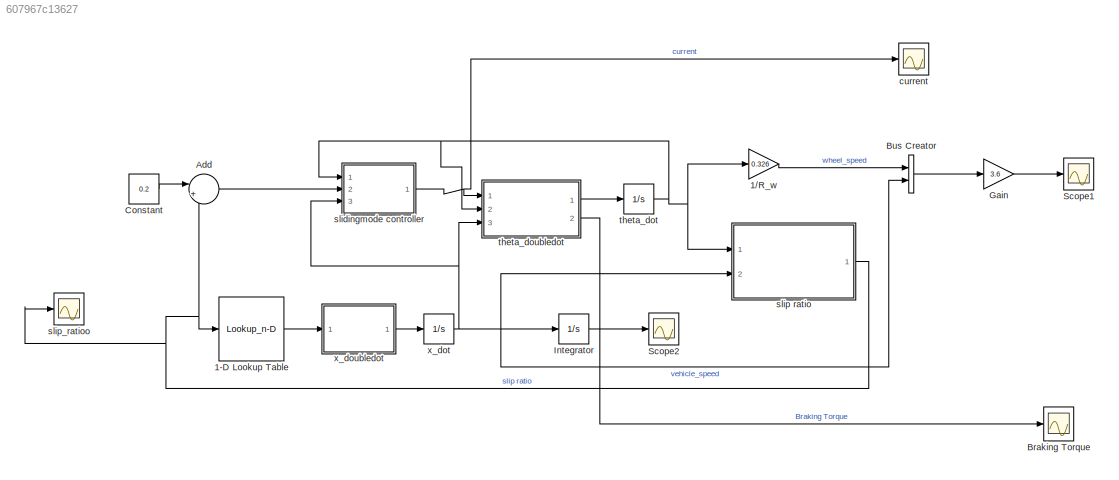
MODEL slx_607967c13627
KIND model
CONFIG AbsTol = auto
CONFIG EnableMultiTasking = off
CONFIG FixedStep = auto
CONFIG MaxStep = auto
CONFIG MinStep = auto
CONFIG RelTol = 1e-3
CONFIG SampleTimeConstraint = Unconstrained
CONFIG SolverName = VariableStepAuto
CONFIG StartTime = 0.0
CONFIG StopTime = 5
BLOCK [Lookup_n-D] 1-D Lookup Table
  BreakpointsForDimension1 = [0\n0.0500000000000000028\n0.100000000000000006\n0.150000000000000022\n0.200000000000000011\n0.25\n0.300000000000000044\n0.350000000000000033\n0.400000000000000022\n0.450000000000000011\n0.5\n0.550000000000000044\n0.599999999999999978\n0.649999999999999911\n0.699999999999999956\n0.75\n0.800000000000000044\n0.849999999999999978\n0.900000000000000022\n0.949999999999999956\n1]
  InputPortMap = u0
  InternalRulePriority = Speed
  InterpMethod = Linear Lagrange
  NumberOfTableDimensions = 1
  Ports = [1, 1]
  RndMeth = Simplest
  Table = [0\n0.400000000000000022\n0.800000000000000044\n0.969999999999999973\n1\n0.979999999999999982\n0.959999999999999964\n0.939999999999999947\n0.92000000000000004\n0.900000000000000022\n0.880000000000000004\n0.854999999999999982\n0.82999999999999996\n0.810000000000000053\n0.790000000000000036\n0.770000000000000018\n0.75\n0.729999999999999982\n0.719999999999999973\n0.709999999999999964\n0.699999999999999956]
BLOCK [Gain] 1//R_w
  Gain = 0.326
BLOCK [Sum] Add
  Inputs = |+-
  Ports = [2, 1]
BLOCK [Scope] Braking Torque
  Floating = off
  NumInputPorts = 1
  Ports = [1]
  ScopeSpecificationString = Simulink.scopes.TimeScopeBlockCfg('CurrentConfiguration', extmgr.ConfigurationSet(extmgr.Configuration('Core','General UI',true),extmgr.Configuration('Core','Source UI',true),extmgr.Configuration('Sources','WiredSimulink',true,'DataLoggingVariableName','ScopeData1'),extmgr.Configuration('Visuals','Time Domain',true,'SerializedDisplays',{struct('MinYLimReal','-48.68262','MaxYLimReal','2651.39001','...<+1501ch>
BLOCK [BusCreator] Bus Creator
  DisplayOption = bar
  InheritFromInputs = on
  Inputs = wheel_speed,vehicle_speed
  Ports = [2, 1]
BLOCK [Constant] Constant
  Value = 0.2
BLOCK [Gain] Gain
  Gain = 3.6
BLOCK [Integrator] Integrator
  Ports = [1, 1]
BLOCK [Scope] Scope1
  Floating = off
  NumInputPorts = 1
  Ports = [1]
  ScopeSpecificationString = Simulink.scopes.TimeScopeBlockCfg('CurrentConfiguration', extmgr.ConfigurationSet(extmgr.Configuration('Core','General UI',true),extmgr.Configuration('Core','Source UI',true),extmgr.Configuration('Sources','WiredSimulink',true,'DataLoggingVariableName','ScopeData1'),extmgr.Configuration('Visuals','Time Domain',true,'SerializedDisplays',{struct('MinYLimReal','31.70089','MaxYLimReal','158.9132','YLa...<+1490ch>
BLOCK [Scope] Scope2
  Floating = off
  NumInputPorts = 1
  Ports = [1]
  ScopeSpecificationString = Simulink.scopes.TimeScopeBlockCfg('CurrentConfiguration', extmgr.ConfigurationSet(extmgr.Configuration('Core','General UI',true),extmgr.Configuration('Core','Source UI',true),extmgr.Configuration('Sources','WiredSimulink',true,'DataLoggingVariableName','ScopeData2'),extmgr.Configuration('Visuals','Time Domain',true,'SerializedDisplays',{struct('MinYLimReal','-3.11688','MaxYLimReal','28.05194','YLa...<+1373ch>
BLOCK [Scope] current
  Floating = off
  NumInputPorts = 1
  Ports = [1]
  ScopeSpecificationString = Simulink.scopes.TimeScopeBlockCfg('CurrentConfiguration', extmgr.ConfigurationSet(extmgr.Configuration('Core','General UI',true),extmgr.Configuration('Core','Source UI',true),extmgr.Configuration('Sources','WiredSimulink',true,'DataLoggingVariableName','ScopeData1'),extmgr.Configuration('Visuals','Time Domain',true,'SerializedDisplays',{struct('MinYLimReal','8.49232','MaxYLimReal','27.28727','YLab...<+1368ch>
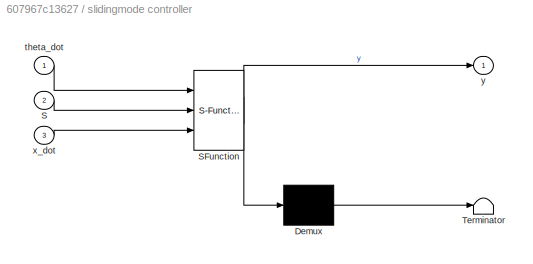
BLOCK [SubSystem] slidingmode controller 
  ErrorFcn = Stateflow.Translate.translate
  PermitHierarchicalResolution = ExplicitOnly
  Ports = [3, 1]
  RequestExecContextInheritance = off
  SFBlockType = MATLAB Function
  TreatAsAtomicUnit = on
BLOCK [Demux] slidingmode controller / Demux 
  Outputs = 1
  Ports = [1, 1]
BLOCK [S-Function] slidingmode controller / SFunction 
  EnableBusSupport = on
  FunctionName = sf_sfun
  PortCounts = [3 2]
  Ports = [3, 2]
  SFcnIsStateOwnerBlock = off
  SFunctionDeploymentMode = off
  Tag = Stateflow S-Function 2
BLOCK [Terminator] slidingmode controller / Terminator 
BLOCK [Inport] slidingmode controller /S
  Port = 2
BLOCK [Inport] slidingmode controller /theta_dot
BLOCK [Inport] slidingmode controller /x_dot
  Port = 3
BLOCK [Outport] slidingmode controller /y
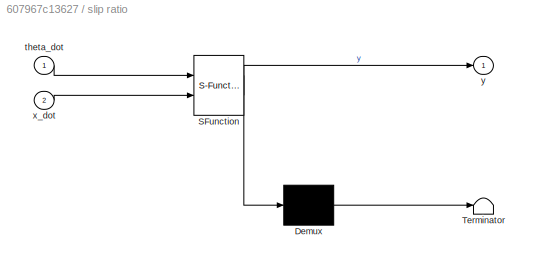
BLOCK [SubSystem] slip ratio
  ErrorFcn = Stateflow.Translate.translate
  PermitHierarchicalResolution = ExplicitOnly
  Ports = [2, 1]
  RequestExecContextInheritance = off
  SFBlockType = MATLAB Function
  TreatAsAtomicUnit = on
BLOCK [Demux] slip ratio/ Demux 
  Outputs = 1
  Ports = [1, 1]
BLOCK [S-Function] slip ratio/ SFunction 
  EnableBusSupport = on
  FunctionName = sf_sfun
  PortCounts = [2 2]
  Ports = [2, 2]
  SFcnIsStateOwnerBlock = off
  SFunctionDeploymentMode = off
  Tag = Stateflow S-Function 4
BLOCK [Terminator] slip ratio/ Terminator 
BLOCK [Inport] slip ratio/theta_dot
BLOCK [Inport] slip ratio/x_dot
  Port = 2
BLOCK [Outport] slip ratio/y
BLOCK [Scope] slip_ratioo
  Floating = off
  NumInputPorts = 1
  Ports = [1]
  ScopeSpecificationString = Simulink.scopes.TimeScopeBlockCfg('CurrentConfiguration', extmgr.ConfigurationSet(extmgr.Configuration('Core','General UI',true),extmgr.Configuration('Core','Source UI',true),extmgr.Configuration('Sources','WiredSimulink',true),extmgr.Configuration('Visuals','Time Domain',true,'SerializedDisplays',{struct('MinYLimReal','-0.02603','MaxYLimReal','0.23427','YLabelReal','','MinYLimMag','0.00000','MaxY...<+1330ch>
BLOCK [Integrator] theta_dot
  InitialCondition = 59.6455351
  LimitOutput = on
  LowerSaturationLimit = 0
  Ports = [1, 1]
  UpperSaturationLimit = 60
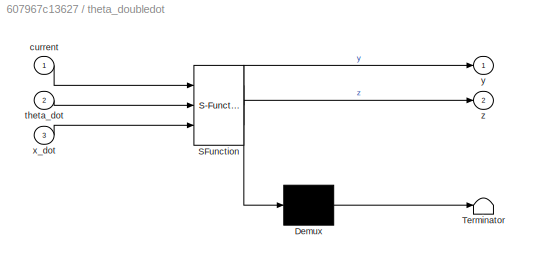
BLOCK [SubSystem] theta_doubledot
  ErrorFcn = Stateflow.Translate.translate
  PermitHierarchicalResolution = ExplicitOnly
  Ports = [3, 2]
  RequestExecContextInheritance = off
  SFBlockType = MATLAB Function
  TreatAsAtomicUnit = on
BLOCK [Demux] theta_doubledot/ Demux 
  Outputs = 1
  Ports = [1, 1]
BLOCK [S-Function] theta_doubledot/ SFunction 
  EnableBusSupport = on
  FunctionName = sf_sfun
  PortCounts = [3 3]
  Ports = [3, 3]
  SFcnIsStateOwnerBlock = off
  SFunctionDeploymentMode = off
  Tag = Stateflow S-Function 1
BLOCK [Terminator] theta_doubledot/ Terminator 
BLOCK [Inport] theta_doubledot/current
BLOCK [Inport] theta_doubledot/theta_dot
  Port = 2
BLOCK [Inport] theta_doubledot/x_dot
  Port = 3
BLOCK [Outport] theta_doubledot/y
BLOCK [Outport] theta_doubledot/z
  Port = 2
BLOCK [Integrator] x_dot
  InitialCondition = 19.444444
  LimitOutput = on
  LowerSaturationLimit = 0
  Ports = [1, 1]
  UpperSaturationLimit = 1000
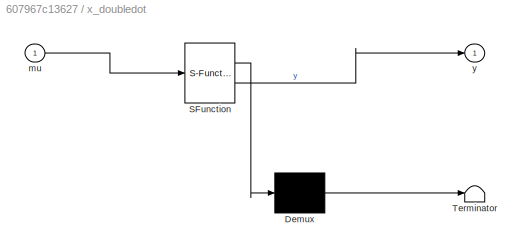
BLOCK [SubSystem] x_doubledot
  ErrorFcn = Stateflow.Translate.translate
  PermitHierarchicalResolution = ExplicitOnly
  Ports = [1, 1]
  RequestExecContextInheritance = off
  SFBlockType = MATLAB Function
  TreatAsAtomicUnit = on
BLOCK [Demux] x_doubledot/ Demux 
  Outputs = 1
  Ports = [1, 1]
BLOCK [S-Function] x_doubledot/ SFunction 
  EnableBusSupport = on
  FunctionName = sf_sfun
  PortCounts = [1 2]
  Ports = [1, 2]
  SFcnIsStateOwnerBlock = off
  SFunctionDeploymentMode = off
  Tag = Stateflow S-Function 3
BLOCK [Terminator] x_doubledot/ Terminator 
BLOCK [Inport] x_doubledot/mu
BLOCK [Outport] x_doubledot/y
LINE 1-D Lookup Table:1 -> x_doubledot:1
LINE 1//R_w:1 -> Bus Creator:1
LINE Add:1 -> slidingmode controller :2
LINE Bus Creator:1 -> Gain:1
LINE Constant:1 -> Add:1
LINE Gain:1 -> Scope1:1
LINE Integrator:1 -> Scope2:1
NET slidingmode controller :1 -> current:1, theta_doubledot:1
NET slip ratio:1 -> 1-D Lookup Table:1, Add:2, slip_ratioo:1
NET theta_dot:1 -> 1//R_w:1, slidingmode controller :1, slip ratio:1, theta_doubledot:2
LINE theta_doubledot:1 -> theta_dot:1
LINE theta_doubledot:2 -> Braking Torque:1
NET x_dot:1 -> Bus Creator:2, Integrator:1, slidingmode controller :3, slip ratio:2, theta_doubledot:3
LINE x_doubledot:1 -> x_dot:1
note: NET lines group one-source signal fan-out (src -> all destinations, sorted); 1:1 wires keep LINE
CHART theta_doubledot states=1 transitions=1
  STATE_LABEL 'eML_blk_kernel()'
  STATE_LABEL 'SCRIPT:\nfunction [y,z]= fcn(current, theta_dot,x_dot)\nmu = 0.8 ;\ng = 9.80665 ;\nN = 4 ;\nr_z = 0.168  ;\nr_w = 0.118  ;\nmu_p = 0.09 ;\nh = 10^(-3) ;\nk = 0.269 ;\nalpha = 12.5 * 1000 ; \nI_y = 2.5 * 10^(-2)  ;\nR_w = 0.326 ;\nl = 2.5 ;\nh_CE = 0.5 ;\nm_w = 40 ;\nm_v = 1630 ; \nI_t = 1.75 ;\nf_0 = 10^ (-2) ;\nf_s = 5*10^(-3) ;\nK_v = 2.237 ;\nT_i = 2*( pi )*N*k*alpha*(r_z^3 - r_w^3)/3 ; \nT_v = pi*N*mu_p*(r_z^4 - r_...<+379ch>'
CHART slidingmode controller  states=1 transitions=1
  STATE_LABEL 'eML_blk_kernel()'
  STATE_LABEL 'SCRIPT:\nfunction y = fcn(theta_dot , S ,x_dot ) \nmu = 0.8 ;\ns_rd = 0.2;\nlambda = 5;\nneeta  = 1.1 ;\ng = 9.80665;\nmu_star = 0.3;\nN = 4 ;\nr_z = 0.168  ;\nr_w = 0.118  ;\nmu_p = 0.09;\nh = 10^(-3);\nk = 0.269 ;\nalpha = 12.5 * 1000 ;\nI_y = 2.5 * 10^(-2)  ;\n\nR_w = 0.326 ;\nl = 2.5 ;\nh_CE = 0.5 ;\nm_w = 40 ;\nm_v = 1630 ; \nI_t = 1.75 ;\nf_0 = 10^ (-2) ;\nf_s = 5*10^(-3) ;\nK_v = 2.237 ;\nT_i = 2*( pi )*N*k*alpha*(r...<+524ch>'
CHART x_doubledot states=1 transitions=1
  STATE_LABEL 'eML_blk_kernel()'
  STATE_LABEL 'SCRIPT:\nfunction y = fcn(mu)\n\ng = 9.80665 ;\nl = 2.5 ;\nh_CE = 0.5 ;\nm_w = 40 ;\nm_v = 1630 ; \n\nm_t = 0.25*m_v + m_w ;\n\nm_1 = m_v*h_CE/ (l*m_t) ;\nx_doubledot = -mu*g/ (1+mu*m_1) ;\n\nu = x_doubledot ;\ny = u;\n'
CHART slip ratio states=1 transitions=1
  STATE_LABEL 'eML_blk_kernel()'
  STATE_LABEL 'SCRIPT:\nfunction y = fcn(theta_dot , x_dot)\nR_w = 0.326;\ns_rd = (x_dot - R_w*theta_dot)/ x_dot\ny = s_rd;\n'
CHART  states=0 transitions=0
CHART  states=0 transitions=0
CHART  states=0 transitions=0
CHART  states=0 transitions=0
